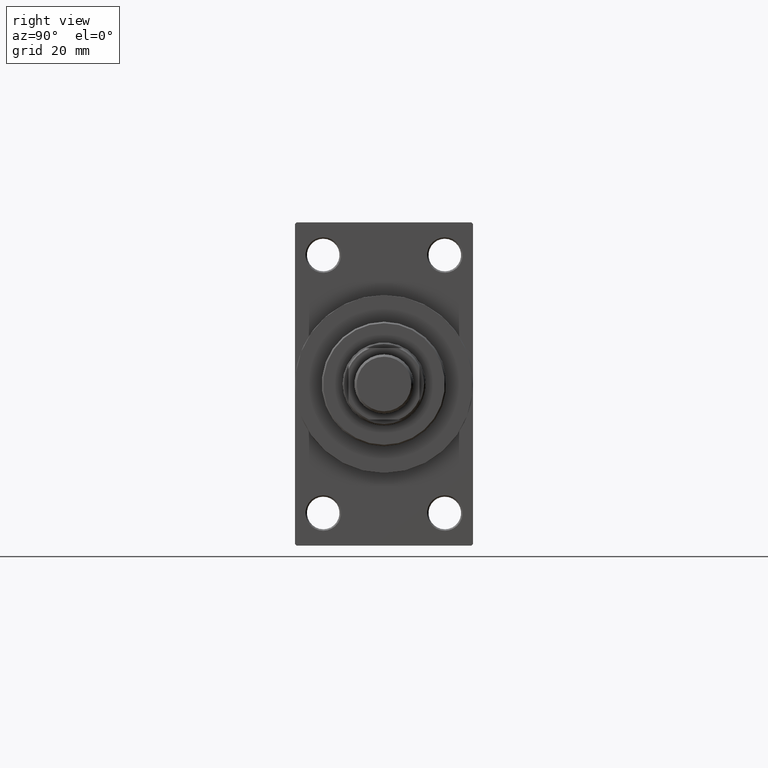
[diagram: clean part render]
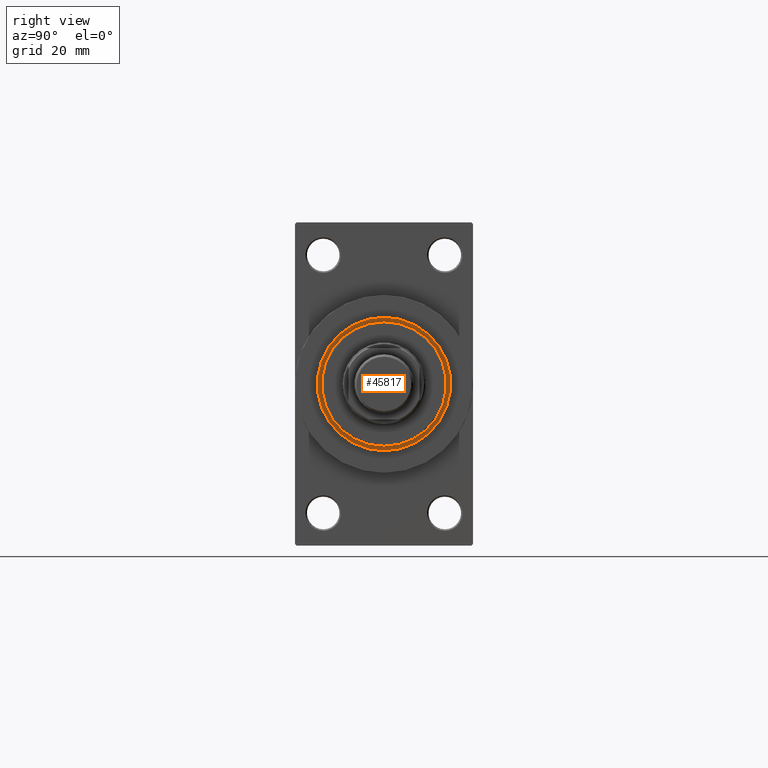
[diagram: same view with one face highlighted and labeled with its STEP entity id]
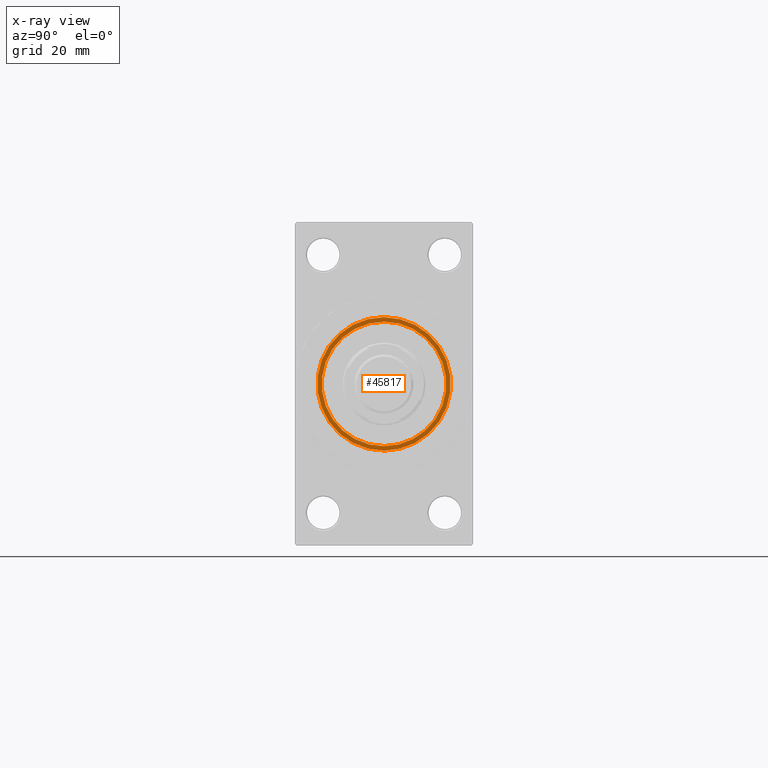
[diagram: x-ray of the same camera — body ghosted, the highlighted face saturated]
A machine part, right view. The second image highlights one B-rep face of the part: STEP entity #45817.
The next image is the same camera in x-ray: the body ghosted, the highlighted face saturated — about 0% of this face is hidden behind the body in this view.
In plain terms, the highlighted planar face has unit normal (1, -0, -0).
Its self-contained STEP definition (entity closure, byte-faithful):
#1531 = CARTESIAN_POINT ( 'NONE',  ( 21.00000000000000000, 2.571758278209441661E-15, 43.25999999999999801 ) ) ;
#2050 = VERTEX_POINT ( 'NONE', #3959 ) ;
#2633 = PLANE ( 'NONE',  #4928 ) ;
#3959 = CARTESIAN_POINT ( 'NONE',  ( -21.00000000000000000, 0.000000000000000000, 43.25999999999999801 ) ) ;
#4928 = AXIS2_PLACEMENT_3D ( 'NONE', #26677, #15806, #11963 ) ;
#5029 = ORIENTED_EDGE ( 'NONE', *, *, #45344, .T. ) ;
#7001 = DIRECTION ( 'NONE',  ( 1.000000000000000000, 0.000000000000000000, 0.000000000000000000 ) ) ;
#7007 = EDGE_CURVE ( 'NONE', #33977, #2050, #23299, .T. ) ;
#7410 = DIRECTION ( 'NONE',  ( 0.000000000000000000, 0.000000000000000000, 1.000000000000000000 ) ) ;
#10267 = ORIENTED_EDGE ( 'NONE', *, *, #7007, .F. ) ;
#10892 = CARTESIAN_POINT ( 'NONE',  ( -22.50000000000000355, 0.000000000000000000, 43.25999999999999801 ) ) ;
#10957 = AXIS2_PLACEMENT_3D ( 'NONE', #15118, #7410, #47704 ) ;
#11963 = DIRECTION ( 'NONE',  ( 1.000000000000000000, 0.000000000000000000, -0.000000000000000000 ) ) ;
#14149 = CIRCLE ( 'NONE', #26495, 22.50000000000000355 ) ;
#14234 = CARTESIAN_POINT ( 'NONE',  ( 0.000000000000000000, 0.000000000000000000, 43.25999999999999801 ) ) ;
#14961 = EDGE_CURVE ( 'NONE', #41692, #24252, #31288, .T. ) ;
#15118 = CARTESIAN_POINT ( 'NONE',  ( 0.000000000000000000, 0.000000000000000000, 43.25999999999999801 ) ) ;
#15621 = ORIENTED_EDGE ( 'NONE', *, *, #14961, .T. ) ;
#15806 = DIRECTION ( 'NONE',  ( 0.000000000000000000, 0.000000000000000000, 1.000000000000000000 ) ) ;
#16540 = CARTESIAN_POINT ( 'NONE',  ( 0.000000000000000000, 0.000000000000000000, 43.25999999999999801 ) ) ;
#17184 = EDGE_LOOP ( 'NONE', ( #28757, #10267 ) ) ;
#21888 = EDGE_CURVE ( 'NONE', #2050, #33977, #22938, .T. ) ;
#22938 = CIRCLE ( 'NONE', #31415, 21.00000000000000000 ) ;
#23299 = CIRCLE ( 'NONE', #10957, 21.00000000000000000 ) ;
#24252 = VERTEX_POINT ( 'NONE', #10892 ) ;
#24510 = DIRECTION ( 'NONE',  ( 1.000000000000000000, 0.000000000000000000, 0.000000000000000000 ) ) ;
#25352 = CARTESIAN_POINT ( 'NONE',  ( 0.000000000000000000, 0.000000000000000000, 43.25999999999999801 ) ) ;
#26495 = AXIS2_PLACEMENT_3D ( 'NONE', #25352, #28985, #47550 ) ;
#26677 = CARTESIAN_POINT ( 'NONE',  ( 0.000000000000000000, 0.000000000000000000, 43.25999999999999801 ) ) ;
#28757 = ORIENTED_EDGE ( 'NONE', *, *, #21888, .F. ) ;
#28969 = DIRECTION ( 'NONE',  ( 0.000000000000000000, 0.000000000000000000, 1.000000000000000000 ) ) ;
#28985 = DIRECTION ( 'NONE',  ( 0.000000000000000000, 0.000000000000000000, 1.000000000000000000 ) ) ;
#31288 = CIRCLE ( 'NONE', #44365, 22.50000000000000355 ) ;
#31415 = AXIS2_PLACEMENT_3D ( 'NONE', #16540, #42121, #24510 ) ;
#33977 = VERTEX_POINT ( 'NONE', #1531 ) ;
#38134 = EDGE_LOOP ( 'NONE', ( #5029, #15621 ) ) ;
#39318 = FACE_OUTER_BOUND ( 'NONE', #38134, .T. ) ;
#41692 = VERTEX_POINT ( 'NONE', #42572 ) ;
#42121 = DIRECTION ( 'NONE',  ( 0.000000000000000000, 0.000000000000000000, 1.000000000000000000 ) ) ;
#42572 = CARTESIAN_POINT ( 'NONE',  ( 22.50000000000000355, 2.755455298081545172E-15, 43.25999999999999801 ) ) ;
#44290 = FACE_BOUND ( 'NONE', #17184, .T. ) ;
#44365 = AXIS2_PLACEMENT_3D ( 'NONE', #14234, #28969, #7001 ) ;
#45344 = EDGE_CURVE ( 'NONE', #24252, #41692, #14149, .T. ) ;
#45817 = ADVANCED_FACE ( 'NONE', ( #44290, #39318 ), #2633, .T. ) ;
#47550 = DIRECTION ( 'NONE',  ( 1.000000000000000000, 0.000000000000000000, 0.000000000000000000 ) ) ;
#47704 = DIRECTION ( 'NONE',  ( 1.000000000000000000, 0.000000000000000000, 0.000000000000000000 ) ) ;